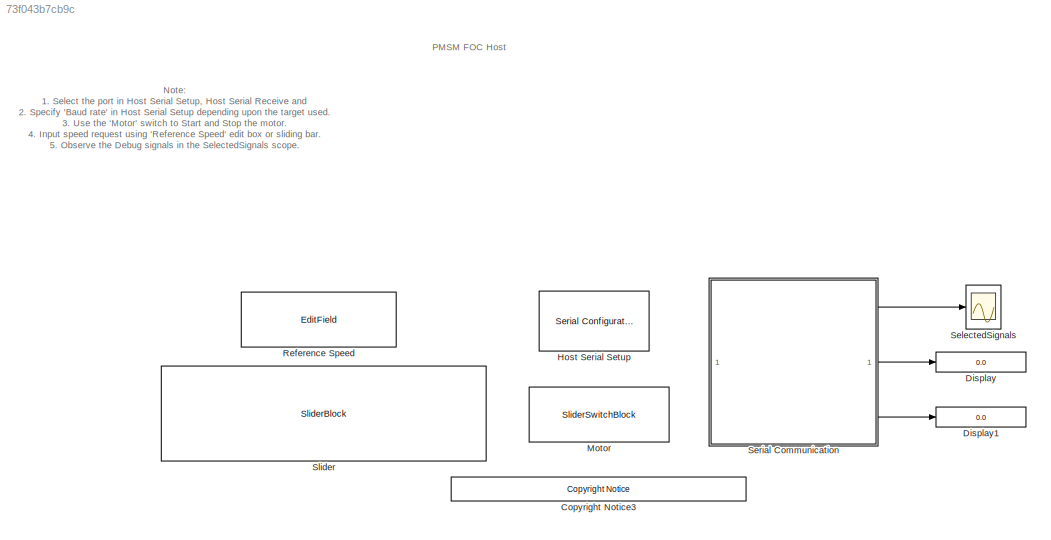
MODEL slx_73f043b7cb9c
KIND model
CONFIG AbsTol = auto
CONFIG EnableMultiTasking = on
CONFIG FixedStep = auto
CONFIG MaxStep = auto
CONFIG MinStep = auto
CONFIG RelTol = 1e-3
CONFIG SampleTimeConstraint = Unconstrained
CONFIG SolverName = FixedStepDiscrete
CONFIG StartTime = 0.0
CONFIG StopTime = inf
BLOCK [Reference] <copyright redacted>
  SourceBlock = demo_controls/<copyright redacted>
  SourceType = <copyright redacted>
BLOCK [Display] Display
  Decimation = 1
BLOCK [Display] Display1
  Decimation = 1
BLOCK [Reference] Host Serial Setup  REF=instrumentseriallib/Serial Configuration
  Priority = -99
  SourceBlock = instrumentseriallib/Serial Configuration
  SourceType = system.SerialConfiguration
BLOCK [SliderSwitchBlock] Motor
  LabelPosition = Hide
BLOCK [EditField] Reference Speed
  Alignment = Center
  LabelPosition = Hide
  ShowInitialText = on
BLOCK [Scope] SelectedSignals
  Floating = off
  NumInputPorts = 1
  ScopeSpecificationString = Simulink.scopes.TimeScopeBlockCfg('CurrentConfiguration', extmgr.ConfigurationSet(extmgr.Configuration('Core','General UI',true),extmgr.Configuration('Core','Source UI',true),extmgr.Configuration('Sources','WiredSimulink',true,'DataLoggingSaveFormat','StructureWithTime'),extmgr.Configuration('Visuals','Time Domain',true,'InputProcessing','FrameProcessing','SerializedDisplays',{struct('MinYLimReal'...<+1715ch>
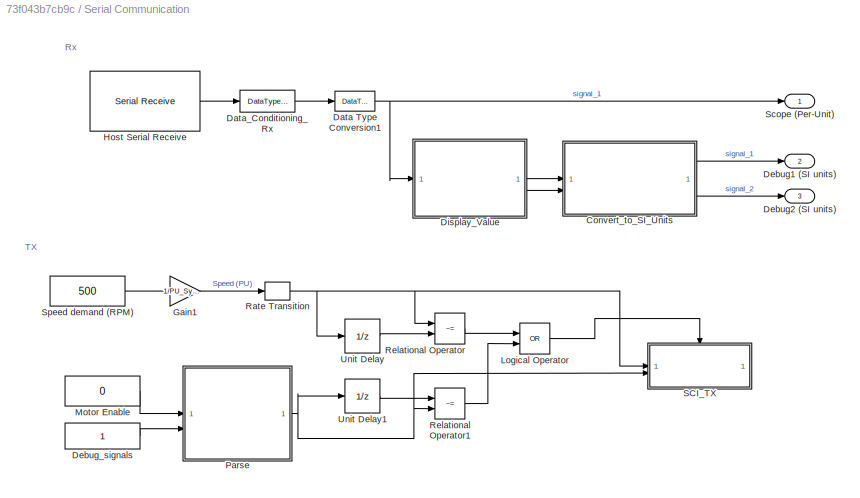
BLOCK [SubSystem] Serial Communication
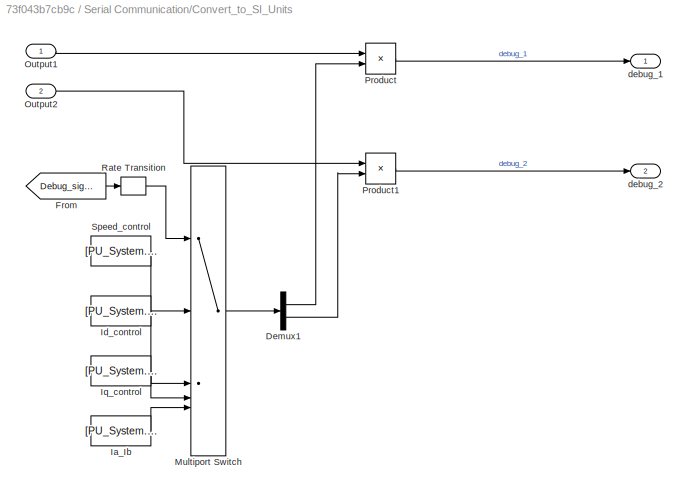
BLOCK [SubSystem] Serial Communication/Convert_to_SI_Units
BLOCK [Demux] Serial Communication/Convert_to_SI_Units/Demux1
  Outputs = 2
BLOCK [From] Serial Communication/Convert_to_SI_Units/From
  GotoTag = Debug_signals
  TagVisibility = global
BLOCK [Constant] Serial Communication/Convert_to_SI_Units/Ia_Ib
  OutDataTypeStr = single
  SampleTime = -1
  Value = [PU_System.I_base PU_System.I_base]
BLOCK [Constant] Serial Communication/Convert_to_SI_Units/Id_control
  OutDataTypeStr = single
  SampleTime = -1
  Value = [PU_System.I_base PU_System.I_base]
BLOCK [Constant] Serial Communication/Convert_to_SI_Units/Iq_control
  OutDataTypeStr = single
  SampleTime = -1
  Value = [PU_System.I_base PU_System.I_base]
BLOCK [MultiPortSwitch] Serial Communication/Convert_to_SI_Units/Multiport Switch
  DiagnosticForDefault = Warning
  InputSameDT = off
  Inputs = 4
  OutDataTypeStr = single
  RndMeth = Simplest
  SaturateOnIntegerOverflow = off
BLOCK [Inport] Serial Communication/Convert_to_SI_Units/Output1
BLOCK [Inport] Serial Communication/Convert_to_SI_Units/Output2
  Port = 2
BLOCK [Product] Serial Communication/Convert_to_SI_Units/Product
BLOCK [Product] Serial Communication/Convert_to_SI_Units/Product1
BLOCK [RateTransition] Serial Communication/Convert_to_SI_Units/Rate Transition
  Deterministic = off
BLOCK [Constant] Serial Communication/Convert_to_SI_Units/Speed_control
  OutDataTypeStr = single
  SampleTime = -1
  Value = [PU_System.N_base PU_System.N_base]
BLOCK [Outport] Serial Communication/Convert_to_SI_Units/debug_1
BLOCK [Outport] Serial Communication/Convert_to_SI_Units/debug_2
  Port = 2
BLOCK [DataTypeConversion] Serial Communication/Data Type Conversion1
  OutDataTypeStr = single
  RndMeth = Simplest
  SaturateOnIntegerOverflow = off
BLOCK [DataTypeConversion] Serial Communication/Data_Conditioning_Rx
  ConvertRealWorld = Stored Integer (SI)
  OutDataTypeStr = fixdt(1,16,12)
  RndMeth = Simplest
  SaturateOnIntegerOverflow = off
BLOCK [Outport] Serial Communication/Debug1 (SI units)
  Port = 2
BLOCK [Outport] Serial Communication/Debug2 (SI units)
  Port = 3
BLOCK [Constant] Serial Communication/Debug_signals
  OutDataTypeStr = uint16
  SampleTime = 0.03
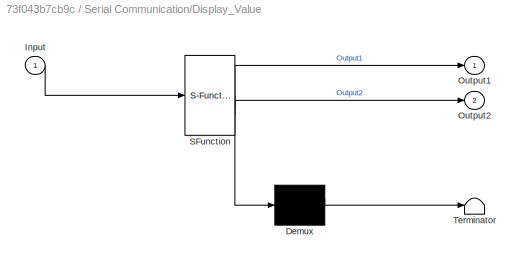
BLOCK [SubSystem] Serial Communication/Display_Value
  ErrorFcn = Stateflow.Translate.translate
  PermitHierarchicalResolution = ExplicitOnly
  SFBlockType = MATLAB Function
  TreatAsAtomicUnit = on
BLOCK [Demux] Serial Communication/Display_Value/ Demux 
  Outputs = 1
BLOCK [S-Function] Serial Communication/Display_Value/ SFunction 
  EnableBusSupport = on
  FunctionName = sf_sfun
  PortCounts = [1 3]
  SFcnIsStateOwnerBlock = off
  SFunctionDeploymentMode = off
  Tag = Stateflow S-Function 3
BLOCK [Terminator] Serial Communication/Display_Value/ Terminator 
BLOCK [Inport] Serial Communication/Display_Value/Input
BLOCK [Outport] Serial Communication/Display_Value/Output1
BLOCK [Outport] Serial Communication/Display_Value/Output2
  Port = 2
BLOCK [Gain] Serial Communication/Gain1
  Gain = 1/PU_System.N_base
  OutDataTypeStr = Inherit: Same as input
  RndMeth = Simplest
BLOCK [Reference] Serial Communication/Host Serial Receive  REF=instrumentseriallib/Serial Receive
  SourceBlock = instrumentseriallib/Serial Receive
  SourceType = system.SerialReceive
BLOCK [Logic] Serial Communication/Logical Operator
  AllPortsSameDT = off
  Operator = OR
  OutDataTypeStr = boolean
BLOCK [Constant] Serial Communication/Motor Enable
  OutDataTypeStr = uint16
  SampleTime = 0.03
  Value = 0
  VectorParams1D = off
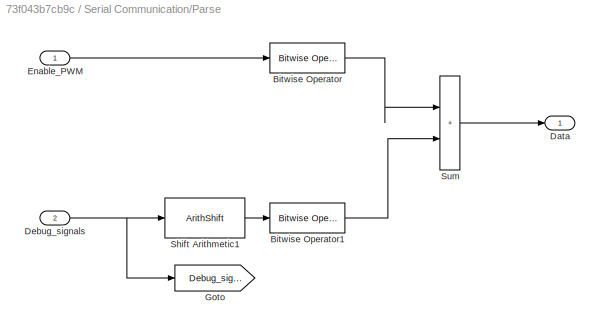
BLOCK [SubSystem] Serial Communication/Parse
BLOCK [Reference] Serial Communication/Parse/Bitwise Operator  REF=simulink/Logic and Bit
Operations/Bitwise
Operator
  SourceBlock = simulink/Logic and Bit\nOperations/Bitwise\nOperator
  SourceType = Bitwise Operator
BLOCK [Reference] Serial Communication/Parse/Bitwise Operator1  REF=simulink/Logic and Bit
Operations/Bitwise
Operator
  SourceBlock = simulink/Logic and Bit\nOperations/Bitwise\nOperator
  SourceType = Bitwise Operator
BLOCK [Outport] Serial Communication/Parse/Data
BLOCK [Inport] Serial Communication/Parse/Debug_signals
  Port = 2
BLOCK [Inport] Serial Communication/Parse/Enable_PWM
BLOCK [Goto] Serial Communication/Parse/Goto
  GotoTag = Debug_signals
  TagVisibility = global
BLOCK [ArithShift] Serial Communication/Parse/Shift Arithmetic1
  BitShiftNumber = -4
  InputPortMap = u0
BLOCK [Sum] Serial Communication/Parse/Sum
  IconShape = rectangular
  Inputs = |++
BLOCK [RateTransition] Serial Communication/Rate Transition
  OutPortSampleTime = 0.03
BLOCK [RelationalOperator] Serial Communication/Relational Operator
  InputSameDT = off
  Operator = ~=
  OutDataTypeStr = boolean
BLOCK [RelationalOperator] Serial Communication/Relational Operator1
  InputSameDT = off
  Operator = ~=
  OutDataTypeStr = boolean
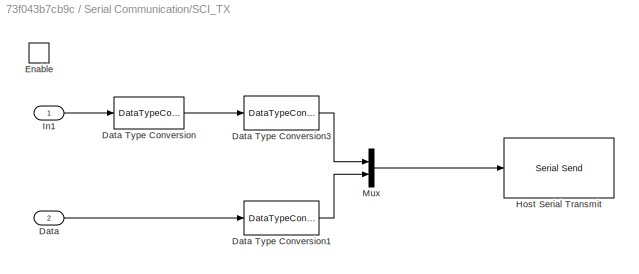
BLOCK [SubSystem] Serial Communication/SCI_TX
  TreatAsAtomicUnit = on
BLOCK [Inport] Serial Communication/SCI_TX/Data
  Port = 2
BLOCK [DataTypeConversion] Serial Communication/SCI_TX/Data Type Conversion
  OutDataTypeStr = fixdt(1,16,12)
  RndMeth = Simplest
  SaturateOnIntegerOverflow = off
BLOCK [DataTypeConversion] Serial Communication/SCI_TX/Data Type Conversion1
  OutDataTypeStr = uint16
  RndMeth = Simplest
  SaturateOnIntegerOverflow = off
BLOCK [DataTypeConversion] Serial Communication/SCI_TX/Data Type Conversion3
  ConvertRealWorld = Stored Integer (SI)
  OutDataTypeStr = uint16
  RndMeth = Simplest
  SaturateOnIntegerOverflow = off
BLOCK [EnablePort] Serial Communication/SCI_TX/Enable
BLOCK [Reference] Serial Communication/SCI_TX/Host Serial Transmit  REF=instrumentseriallib/Serial Send
  SourceBlock = instrumentseriallib/Serial Send
  SourceType = system.SerialSend
BLOCK [Inport] Serial Communication/SCI_TX/In1
BLOCK [Mux] Serial Communication/SCI_TX/Mux
  DisplayOption = bar
  Inputs = 2
BLOCK [Outport] Serial Communication/Scope (Per-Unit)
BLOCK [Constant] Serial Communication/Speed demand (RPM)
  OutDataTypeStr = single
  SampleTime = 0.03
  Value = 500
  VectorParams1D = off
BLOCK [UnitDelay] Serial Communication/Unit Delay
  HasFrameUpgradeWarning = on
  InitialCondition = 0.5
  SampleTime = -1
BLOCK [UnitDelay] Serial Communication/Unit Delay1
  HasFrameUpgradeWarning = on
  SampleTime = -1
BLOCK [SliderBlock] Slider
  LabelPosition = Hide
  ScaleMax = 6000
  ScaleMin = -6000
ANNOTATION (root): PMSM FOC Host
ANNOTATION (root): Note: 1. Select the port in Host Serial Setup , Host Serial Receive and 2. Specify 'Baud rate' in Host Serial Setup depending upon the target used. 3. Use the 'Motor' switch to Start and Stop the motor. 4. Input speed request using 'Reference Speed' edit box or sliding bar. 5. Observe the Debug signals in the SelectedSignals scope. 6. For sensorless example, start the motor in open loop(0.08-0.1 p...<+46ch>
ANNOTATION Serial Communication: Rx
ANNOTATION Serial Communication: TX
LINE Serial Communication/Convert_to_SI_Units/Demux1:1 -> Serial Communication/Convert_to_SI_Units/Product:2
LINE Serial Communication/Convert_to_SI_Units/Demux1:2 -> Serial Communication/Convert_to_SI_Units/Product1:2
LINE Serial Communication/Convert_to_SI_Units/From:1 -> Serial Communication/Convert_to_SI_Units/Rate Transition:1
LINE Serial Communication/Convert_to_SI_Units/Ia_Ib:1 -> Serial Communication/Convert_to_SI_Units/Multiport Switch:5
LINE Serial Communication/Convert_to_SI_Units/Id_control:1 -> Serial Communication/Convert_to_SI_Units/Multiport Switch:3
LINE Serial Communication/Convert_to_SI_Units/Iq_control:1 -> Serial Communication/Convert_to_SI_Units/Multiport Switch:4
LINE Serial Communication/Convert_to_SI_Units/Multiport Switch:1 -> Serial Communication/Convert_to_SI_Units/Demux1:1
LINE Serial Communication/Convert_to_SI_Units/Output1:1 -> Serial Communication/Convert_to_SI_Units/Product:1
LINE Serial Communication/Convert_to_SI_Units/Output2:1 -> Serial Communication/Convert_to_SI_Units/Product1:1
LINE Serial Communication/Convert_to_SI_Units/Product1:1 -> Serial Communication/Convert_to_SI_Units/debug_2:1
LINE Serial Communication/Convert_to_SI_Units/Product:1 -> Serial Communication/Convert_to_SI_Units/debug_1:1
LINE Serial Communication/Convert_to_SI_Units/Rate Transition:1 -> Serial Communication/Convert_to_SI_Units/Multiport Switch:1
LINE Serial Communication/Convert_to_SI_Units/Speed_control:1 -> Serial Communication/Convert_to_SI_Units/Multiport Switch:2
LINE Serial Communication/Convert_to_SI_Units:1 -> Serial Communication/Debug1 (SI units):1
LINE Serial Communication/Convert_to_SI_Units:2 -> Serial Communication/Debug2 (SI units):1
NET Serial Communication/Data Type Conversion1:1 -> Serial Communication/Display_Value:1, Serial Communication/Scope (Per-Unit):1
LINE Serial Communication/Data_Conditioning_Rx:1 -> Serial Communication/Data Type Conversion1:1
LINE Serial Communication/Debug_signals:1 -> Serial Communication/Parse:2
LINE Serial Communication/Display_Value:1 -> Serial Communication/Convert_to_SI_Units:1
LINE Serial Communication/Display_Value:2 -> Serial Communication/Convert_to_SI_Units:2
LINE Serial Communication/Gain1:1 -> Serial Communication/Rate Transition:1
LINE Serial Communication/Host Serial Receive:1 -> Serial Communication/Data_Conditioning_Rx:1
LINE Serial Communication/Logical Operator:1 -> Serial Communication/SCI_TX:enable
LINE Serial Communication/Motor Enable:1 -> Serial Communication/Parse:1
LINE Serial Communication/Parse/Bitwise Operator1:1 -> Serial Communication/Parse/Sum:2
LINE Serial Communication/Parse/Bitwise Operator:1 -> Serial Communication/Parse/Sum:1
NET Serial Communication/Parse/Debug_signals:1 -> Serial Communication/Parse/Goto:1, Serial Communication/Parse/Shift Arithmetic1:1
LINE Serial Communication/Parse/Enable_PWM:1 -> Serial Communication/Parse/Bitwise Operator:1
LINE Serial Communication/Parse/Shift Arithmetic1:1 -> Serial Communication/Parse/Bitwise Operator1:1
LINE Serial Communication/Parse/Sum:1 -> Serial Communication/Parse/Data:1
NET Serial Communication/Parse:1 -> Serial Communication/Relational Operator1:2, Serial Communication/SCI_TX:2, Serial Communication/Unit Delay1:1
NET Serial Communication/Rate Transition:1 -> Serial Communication/Relational Operator:1, Serial Communication/SCI_TX:1, Serial Communication/Unit Delay:1
LINE Serial Communication/Relational Operator1:1 -> Serial Communication/Logical Operator:2
LINE Serial Communication/Relational Operator:1 -> Serial Communication/Logical Operator:1
LINE Serial Communication/SCI_TX/Data Type Conversion1:1 -> Serial Communication/SCI_TX/Mux:2
LINE Serial Communication/SCI_TX/Data Type Conversion3:1 -> Serial Communication/SCI_TX/Mux:1
LINE Serial Communication/SCI_TX/Data Type Conversion:1 -> Serial Communication/SCI_TX/Data Type Conversion3:1
LINE Serial Communication/SCI_TX/Data:1 -> Serial Communication/SCI_TX/Data Type Conversion1:1
LINE Serial Communication/SCI_TX/In1:1 -> Serial Communication/SCI_TX/Data Type Conversion:1
LINE Serial Communication/SCI_TX/Mux:1 -> Serial Communication/SCI_TX/Host Serial Transmit:1
LINE Serial Communication/Speed demand (RPM):1 -> Serial Communication/Gain1:1
LINE Serial Communication/Unit Delay1:1 -> Serial Communication/Relational Operator1:1
LINE Serial Communication/Unit Delay:1 -> Serial Communication/Relational Operator:2
LINE Serial Communication:1 -> SelectedSignals:1
LINE Serial Communication:2 -> Display:1
LINE Serial Communication:3 -> Display1:1
note: NET lines group one-source signal fan-out (src -> all destinations, sorted); 1:1 wires keep LINE
CHART Serial Communication/Display_Value states=1 transitions=1
  STATE_LABEL 'eML_blk_kernel()'
  STATE_LABEL 'SCRIPT:\nfunction [ Output1, Output2] = unBuf(Input)\n%% ************************************************************************\n% Unbuffer function\n% Outputs first received serial data from buffer for both signals\n\n% <copyright redacted>\n\nselSignal= Input(:, 1);\nOutput1 = selSignal(1,1);\nselSignal = Input(:, 2);\nOutput2 = selSignal(1,1);\nend'
CHART  states=0 transitions=0
